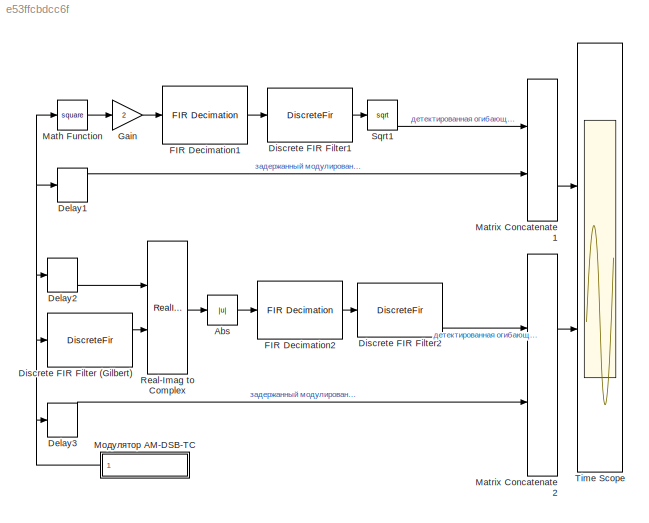
MODEL slx_e53ffcbdcc6f
KIND model
CONFIG AbsTol = auto
CONFIG EnableMultiTasking = on
CONFIG FixedStep = auto
CONFIG MaxStep = auto
CONFIG MinStep = auto
CONFIG PreLoadFcn = pr52setup;
CONFIG RelTol = 1e-3
CONFIG SampleTimeConstraint = Unconstrained
CONFIG Solver = VariableStepAuto
CONFIG SolverName = VariableStepAuto
CONFIG StartTime = 0.0
CONFIG StopTime = 100*time_span
BLOCK [Abs] Abs
  SaturateOnIntegerOverflow = off
BLOCK [Delay] Delay1
  DelayLength = 20
  InitialCondition = 0
  InputPortMap = u0
  Ports = [1, 1]
BLOCK [Delay] Delay2
  DelayLength = 16
  InitialCondition = 0
  InputPortMap = u0
  Ports = [1, 1]
BLOCK [Delay] Delay3
  DelayLength = 36
  InitialCondition = 0
  InputPortMap = u0
  Ports = [1, 1]
BLOCK [DiscreteFir] Discrete FIR Filter (Gilbert)
  Coefficients = firpm(32, [0.1 0.9], [1 1], 'hilbert')
  InputPortMap = u0
  InputProcessing = Columns as channels (frame based)
  OutputPortMap = o0
  Ports = [1, 1]
BLOCK [DiscreteFir] Discrete FIR Filter1
  Coefficients = firpm(20, [0 0.03 0.1 1], [1 1 0 0])
  InputPortMap = u0
  InputProcessing = Columns as channels (frame based)
  OutputPortMap = o0
  Ports = [1, 1]
BLOCK [DiscreteFir] Discrete FIR Filter2
  Coefficients = firpm(20, [0 0.03 0.1 1], [1 1 0 0])
  InputPortMap = u0
  InputProcessing = Columns as channels (frame based)
  OutputPortMap = o0
  Ports = [1, 1]
BLOCK [Reference] FIR Decimation1  REF=dspmlti4/FIR
Decimation
  Ports = [1, 1]
  SourceBlock = dspmlti4/FIR\nDecimation
  SourceProductBaseCode = DS
  SourceProductName = DSP System Toolbox
  SourceType = FIR Decimation
  UserDataPersistent = on
BLOCK [Reference] FIR Decimation2  REF=dspmlti4/FIR
Decimation
  Ports = [1, 1]
  SourceBlock = dspmlti4/FIR\nDecimation
  SourceProductBaseCode = DS
  SourceProductName = DSP System Toolbox
  SourceType = FIR Decimation
  UserDataPersistent = on
BLOCK [Gain] Gain
  Gain = 2
  OutDataTypeStr = Inherit: Inherit via internal rule
  ParamDataTypeStr = Inherit: Inherit via internal rule
  SaturateOnIntegerOverflow = off
BLOCK [Math] Math Function
  Operator = square
  Ports = [1, 1]
BLOCK [Concatenate] Matrix Concatenate1
  ConcatenateDimension = 2
  Mode = Multidimensional array
  Ports = [2, 1]
BLOCK [Concatenate] Matrix Concatenate2
  ConcatenateDimension = 2
  Mode = Multidimensional array
  Ports = [2, 1]
BLOCK [RealImagToComplex] Real-Imag to Complex
  Ports = [2, 1]
BLOCK [Sqrt] Sqrt1
BLOCK [Scope] Time Scope
  DefaultConfigurationName = spbscopes.TimeScopeBlockCfg
  Floating = off
  NumInputPorts = 2
  Ports = [2]
  ScopeSpecificationString = spbscopes.TimeScopeBlockCfg('CurrentConfiguration', extmgr.ConfigurationSet(extmgr.Configuration('Core','General UI',true,'ShowMainToolbar',false,'ShowStatusbar',false,'FigureColor',[1 1 1]),extmgr.Configuration('Core','Source UI',true),extmgr.Configuration('Sources','WiredSimulink',true,'DataLoggingVariableName','ScopeData1'),extmgr.Configuration('Visuals','Time Domain',true,'DisplayLayoutDimensi...<+2916ch>
  UserDataPersistent = on
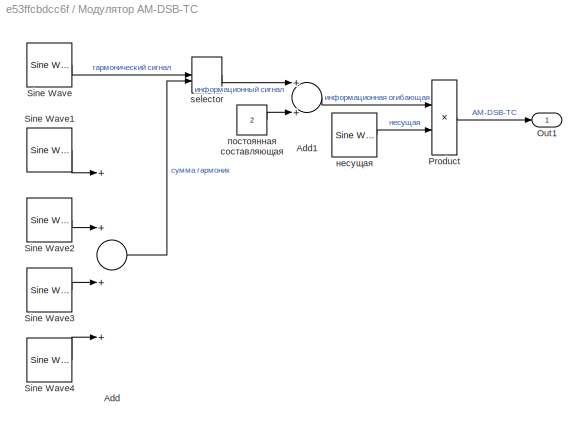
BLOCK [SubSystem] Модулятор AM-DSB-TC
  Ports = [0, 1]
  RequestExecContextInheritance = off
BLOCK [Sum] Модулятор AM-DSB-TC/Add
  InputSameDT = off
  Inputs = ++++
  OutDataTypeStr = Inherit: Inherit via internal rule
  Ports = [4, 1]
  SaturateOnIntegerOverflow = off
BLOCK [Sum] Модулятор AM-DSB-TC/Add1
  InputSameDT = off
  OutDataTypeStr = Inherit: Inherit via internal rule
  Ports = [2, 1]
  SaturateOnIntegerOverflow = off
BLOCK [Outport] Модулятор AM-DSB-TC/Out1
  IconDisplay = Port number
BLOCK [Product] Модулятор AM-DSB-TC/Product
  InputSameDT = off
  OutDataTypeStr = Inherit: Inherit via internal rule
  Ports = [2, 1]
  RndMeth = Floor
  SaturateOnIntegerOverflow = off
BLOCK [Reference] Модулятор AM-DSB-TC/Sine Wave  REF=dspsrcs4/Sine Wave
  Ports = [0, 1]
  SourceBlock = dspsrcs4/Sine Wave
  SourceProductBaseCode = DS
  SourceProductName = DSP System Toolbox
  SourceType = Sine Wave
BLOCK [Reference] Модулятор AM-DSB-TC/Sine Wave1  REF=dspsrcs4/Sine Wave
  Ports = [0, 1]
  SourceBlock = dspsrcs4/Sine Wave
  SourceProductBaseCode = DS
  SourceProductName = DSP System Toolbox
  SourceType = Sine Wave
BLOCK [Reference] Модулятор AM-DSB-TC/Sine Wave2  REF=dspsrcs4/Sine Wave
  Ports = [0, 1]
  SourceBlock = dspsrcs4/Sine Wave
  SourceProductBaseCode = DS
  SourceProductName = DSP System Toolbox
  SourceType = Sine Wave
BLOCK [Reference] Модулятор AM-DSB-TC/Sine Wave3  REF=dspsrcs4/Sine Wave
  Ports = [0, 1]
  SourceBlock = dspsrcs4/Sine Wave
  SourceProductBaseCode = DS
  SourceProductName = DSP System Toolbox
  SourceType = Sine Wave
BLOCK [Reference] Модулятор AM-DSB-TC/Sine Wave4  REF=dspsrcs4/Sine Wave
  Ports = [0, 1]
  SourceBlock = dspsrcs4/Sine Wave
  SourceProductBaseCode = DS
  SourceProductName = DSP System Toolbox
  SourceType = Sine Wave
BLOCK [ManualSwitch] Модулятор AM-DSB-TC/selector
BLOCK [Reference] Модулятор AM-DSB-TC/несущая  REF=dspsrcs4/Sine Wave
  Ports = [0, 1]
  SourceBlock = dspsrcs4/Sine Wave
  SourceProductBaseCode = DS
  SourceProductName = DSP System Toolbox
  SourceType = Sine Wave
BLOCK [Constant] Модулятор AM-DSB-TC/постоянная составляющая
  Value = 2
LINE Abs:1 -> FIR Decimation2:1
LINE Delay1:1 -> Matrix Concatenate1:2
LINE Delay2:1 -> Real-Imag to Complex:1
LINE Delay3:1 -> Matrix Concatenate2:2
LINE Discrete FIR Filter (Gilbert):1 -> Real-Imag to Complex:2
LINE Discrete FIR Filter1:1 -> Sqrt1:1
LINE Discrete FIR Filter2:1 -> Matrix Concatenate2:1
LINE FIR Decimation1:1 -> Discrete FIR Filter1:1
LINE FIR Decimation2:1 -> Discrete FIR Filter2:1
LINE Gain:1 -> FIR Decimation1:1
LINE Math Function:1 -> Gain:1
LINE Matrix Concatenate1:1 -> Time Scope:1
LINE Matrix Concatenate2:1 -> Time Scope:2
LINE Real-Imag to Complex:1 -> Abs:1
LINE Sqrt1:1 -> Matrix Concatenate1:1
LINE Модулятор AM-DSB-TC/Add1:1 -> Модулятор AM-DSB-TC/Product:1
LINE Модулятор AM-DSB-TC/Add:1 -> Модулятор AM-DSB-TC/selector:2
LINE Модулятор AM-DSB-TC/Product:1 -> Модулятор AM-DSB-TC/Out1:1
LINE Модулятор AM-DSB-TC/Sine Wave1:1 -> Модулятор AM-DSB-TC/Add:1
LINE Модулятор AM-DSB-TC/Sine Wave2:1 -> Модулятор AM-DSB-TC/Add:2
LINE Модулятор AM-DSB-TC/Sine Wave3:1 -> Модулятор AM-DSB-TC/Add:3
LINE Модулятор AM-DSB-TC/Sine Wave4:1 -> Модулятор AM-DSB-TC/Add:4
LINE Модулятор AM-DSB-TC/Sine Wave:1 -> Модулятор AM-DSB-TC/selector:1
LINE Модулятор AM-DSB-TC/selector:1 -> Модулятор AM-DSB-TC/Add1:1
LINE Модулятор AM-DSB-TC/несущая:1 -> Модулятор AM-DSB-TC/Product:2
LINE Модулятор AM-DSB-TC/постоянная составляющая:1 -> Модулятор AM-DSB-TC/Add1:2
NET Модулятор AM-DSB-TC:1 -> Delay1:1, Delay2:1, Delay3:1, Discrete FIR Filter (Gilbert):1, Math Function:1
note: NET lines group one-source signal fan-out (src -> all destinations, sorted); 1:1 wires keep LINE
